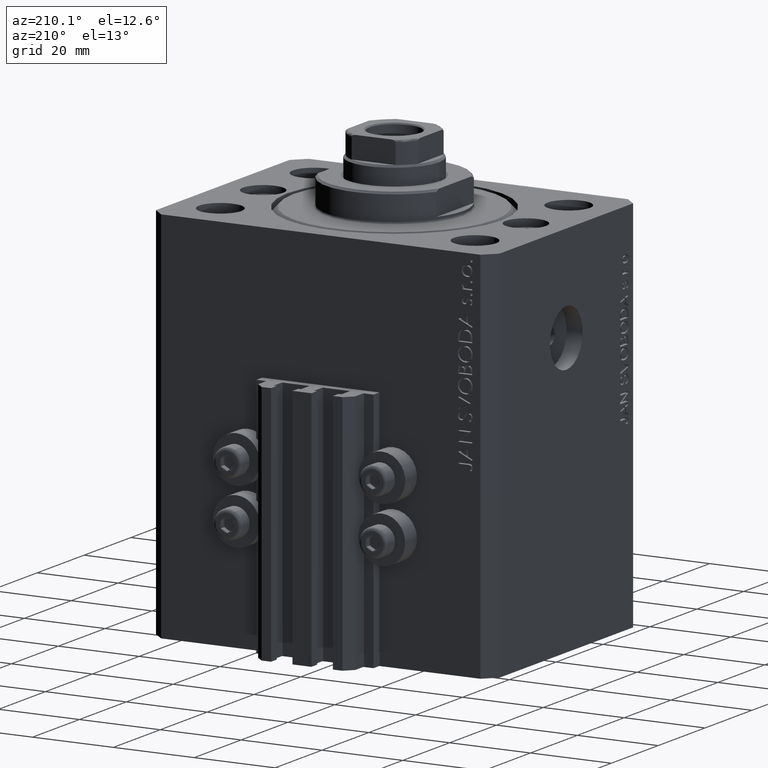
[diagram: clean part render]
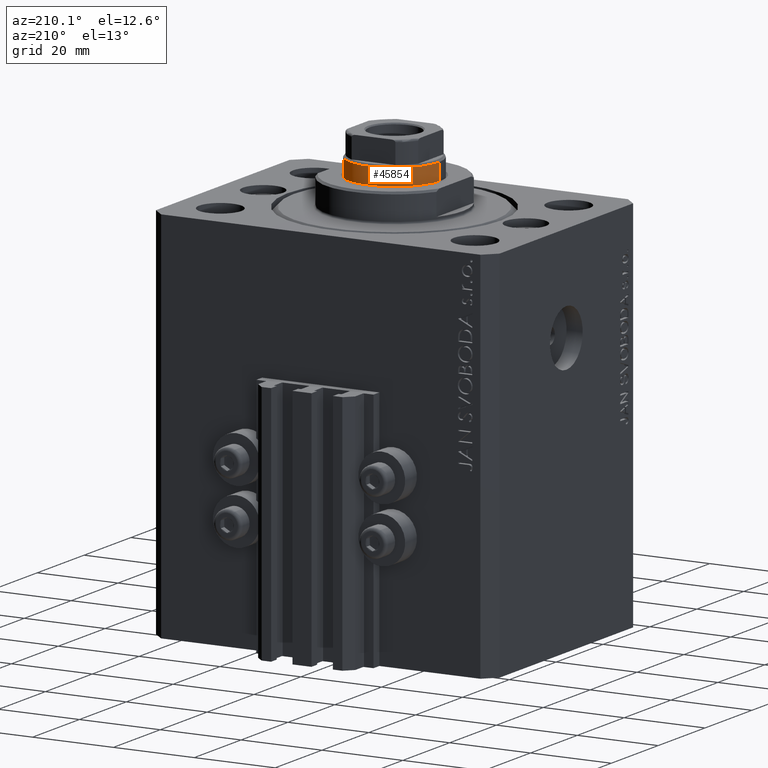
[diagram: same view with one face highlighted and labeled with its STEP entity id]
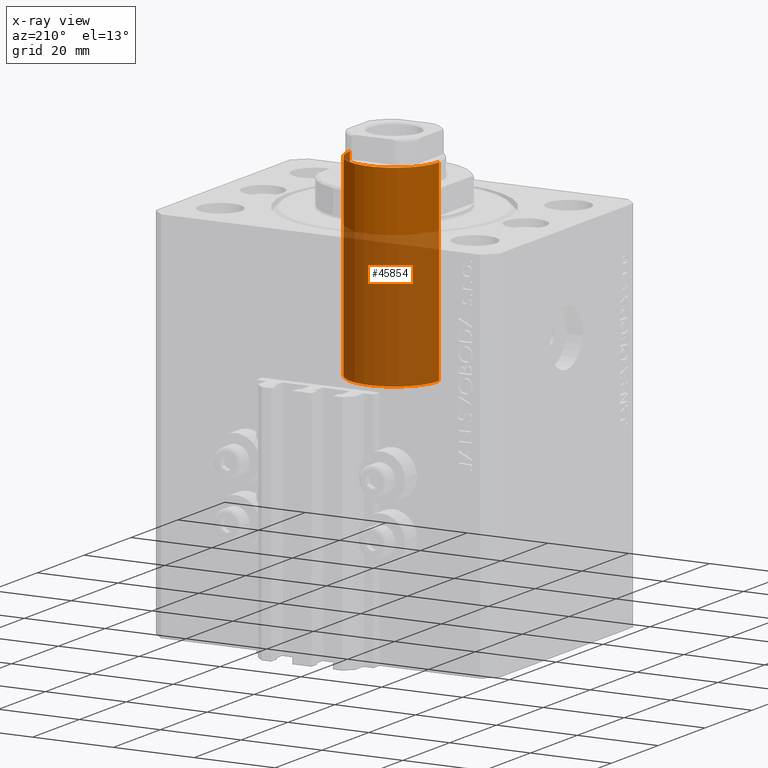
[diagram: x-ray of the same camera — body ghosted, the highlighted face saturated]
A machine part, auxiliary view. The second image highlights one B-rep face of the part: STEP entity #45854.
The next image is the same camera in x-ray: the body ghosted, the highlighted face saturated — about 69% of this face is hidden behind the body in this view.
In plain terms, the highlighted cylindrical surface (partial cylindrical patch) has radius 11 mm, axis along (-0, -0, -1).
Its self-contained STEP definition (entity closure, byte-faithful):
#1709 = ORIENTED_EDGE ( 'NONE', *, *, #31029, .T. ) ;
#2062 = CIRCLE ( 'NONE', #8194, 11.00000000000000000 ) ;
#3220 = VERTEX_POINT ( 'NONE', #11507 ) ;
#3300 = CARTESIAN_POINT ( 'NONE',  ( 0.000000000000000000, 0.000000000000000000, 44.60000000000000142 ) ) ;
#7615 = CARTESIAN_POINT ( 'NONE',  ( 11.00000000000000000, 1.347111479062088207E-15, 93.10000000000000853 ) ) ;
#7827 = DIRECTION ( 'NONE',  ( 1.000000000000000000, 0.000000000000000000, 0.000000000000000000 ) ) ;
#8194 = AXIS2_PLACEMENT_3D ( 'NONE', #3300, #39605, #32686 ) ;
#8404 = CARTESIAN_POINT ( 'NONE',  ( 11.00000000000000000, 1.347111479062088207E-15, 92.60000000000005116 ) ) ;
#8655 = LINE ( 'NONE', #27485, #32805 ) ;
#10465 = EDGE_CURVE ( 'NONE', #3220, #32215, #8655, .T. ) ;
#10714 = VERTEX_POINT ( 'NONE', #39902 ) ;
#11507 = CARTESIAN_POINT ( 'NONE',  ( -11.00000000000000000, 0.000000000000000000, 92.60000000000005116 ) ) ;
#14919 = FACE_OUTER_BOUND ( 'NONE', #20509, .T. ) ;
#16711 = ORIENTED_EDGE ( 'NONE', *, *, #10465, .F. ) ;
#17777 = CARTESIAN_POINT ( 'NONE',  ( 0.000000000000000000, 0.000000000000000000, 93.10000000000000853 ) ) ;
#18231 = AXIS2_PLACEMENT_3D ( 'NONE', #25952, #21914, #7827 ) ;
#18501 = ORIENTED_EDGE ( 'NONE', *, *, #40394, .T. ) ;
#20325 = DIRECTION ( 'NONE',  ( -0.000000000000000000, -0.000000000000000000, -1.000000000000000000 ) ) ;
#20509 = EDGE_LOOP ( 'NONE', ( #30279, #1709, #18501, #16711 ) ) ;
#21914 = DIRECTION ( 'NONE',  ( 0.000000000000000000, 0.000000000000000000, -1.000000000000000000 ) ) ;
#25952 = CARTESIAN_POINT ( 'NONE',  ( 0.000000000000000000, 0.000000000000000000, 92.60000000000005116 ) ) ;
#27485 = CARTESIAN_POINT ( 'NONE',  ( -11.00000000000000000, 0.000000000000000000, 93.10000000000000853 ) ) ;
#27702 = EDGE_CURVE ( 'NONE', #3220, #34887, #32714, .T. ) ;
#28385 = DIRECTION ( 'NONE',  ( -0.000000000000000000, -0.000000000000000000, -1.000000000000000000 ) ) ;
#29227 = DIRECTION ( 'NONE',  ( -0.000000000000000000, -0.000000000000000000, -1.000000000000000000 ) ) ;
#29457 = DIRECTION ( 'NONE',  ( -1.000000000000000000, 0.000000000000000000, 0.000000000000000000 ) ) ;
#30279 = ORIENTED_EDGE ( 'NONE', *, *, #27702, .T. ) ;
#31029 = EDGE_CURVE ( 'NONE', #34887, #10714, #32446, .T. ) ;
#32215 = VERTEX_POINT ( 'NONE', #34278 ) ;
#32446 = LINE ( 'NONE', #7615, #43461 ) ;
#32686 = DIRECTION ( 'NONE',  ( 1.000000000000000000, 0.000000000000000000, 0.000000000000000000 ) ) ;
#32714 = CIRCLE ( 'NONE', #18231, 11.00000000000000000 ) ;
#32805 = VECTOR ( 'NONE', #20325, 1000.000000000000000 ) ;
#34278 = CARTESIAN_POINT ( 'NONE',  ( -11.00000000000000000, 0.000000000000000000, 44.60000000000000142 ) ) ;
#34887 = VERTEX_POINT ( 'NONE', #8404 ) ;
#36745 = AXIS2_PLACEMENT_3D ( 'NONE', #17777, #29227, #29457 ) ;
#39605 = DIRECTION ( 'NONE',  ( 0.000000000000000000, 0.000000000000000000, 1.000000000000000000 ) ) ;
#39902 = CARTESIAN_POINT ( 'NONE',  ( 11.00000000000000000, 1.347111479062088207E-15, 44.60000000000000142 ) ) ;
#39984 = CYLINDRICAL_SURFACE ( 'NONE', #36745, 11.00000000000000000 ) ;
#40394 = EDGE_CURVE ( 'NONE', #10714, #32215, #2062, .T. ) ;
#43461 = VECTOR ( 'NONE', #28385, 1000.000000000000000 ) ;
#45854 = ADVANCED_FACE ( 'NONE', ( #14919 ), #39984, .T. ) ;